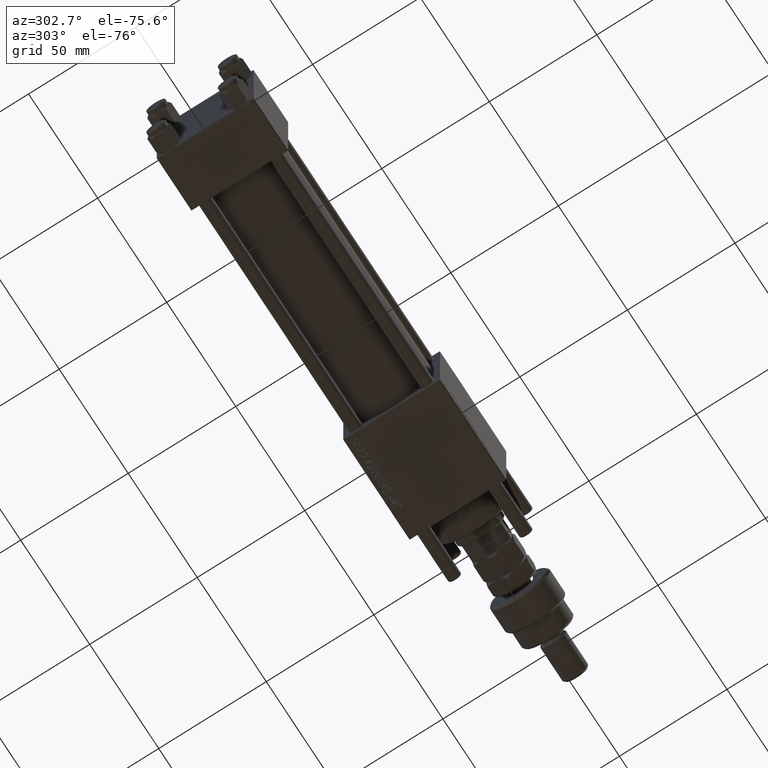
[diagram: clean part render]
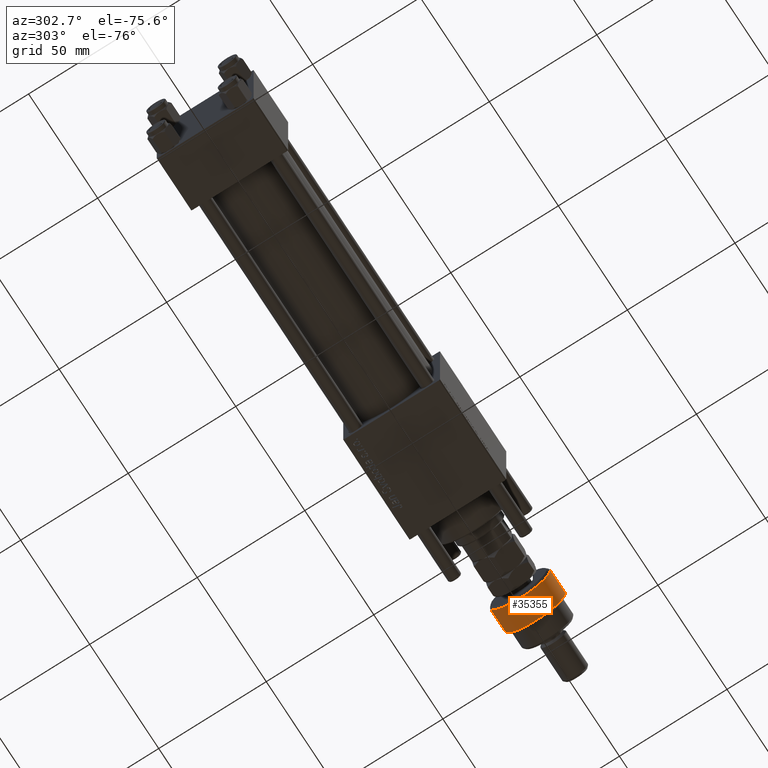
[diagram: same view with one face highlighted and labeled with its STEP entity id]
A machine part, auxiliary view. The second image highlights one B-rep face of the part: STEP entity #35355.
In plain terms, the highlighted cylindrical surface (edge-blend (fillet) strip) has radius 14 mm, axis along (-1, -0, 0).
Its self-contained STEP definition (entity closure, byte-faithful):
#341 = CARTESIAN_POINT ( 'NONE',  ( 0.000000000000000000, 0.000000000000000000, 13.00000000000000000 ) ) ;
#1012 = ORIENTED_EDGE ( 'NONE', *, *, #33241, .T. ) ;
#1550 = DIRECTION ( 'NONE',  ( 1.000000000000000000, 0.000000000000000000, 0.000000000000000000 ) ) ;
#3563 = CARTESIAN_POINT ( 'NONE',  ( 14.00000000000000000, 0.000000000000000000, 1.000000000000018208 ) ) ;
#7761 = DIRECTION ( 'NONE',  ( -1.000000000000000000, 0.000000000000000000, 0.000000000000000000 ) ) ;
#12013 = AXIS2_PLACEMENT_3D ( 'NONE', #341, #40020, #7761 ) ;
#12225 = DIRECTION ( 'NONE',  ( -0.000000000000000000, -0.000000000000000000, 1.000000000000000000 ) ) ;
#13374 = CIRCLE ( 'NONE', #49019, 14.00000000000000000 ) ;
#13424 = ORIENTED_EDGE ( 'NONE', *, *, #15268, .T. ) ;
#14225 = VERTEX_POINT ( 'NONE', #47698 ) ;
#14868 = ORIENTED_EDGE ( 'NONE', *, *, #54134, .T. ) ;
#14979 = AXIS2_PLACEMENT_3D ( 'NONE', #21288, #12225, #30630 ) ;
#15268 = EDGE_CURVE ( 'NONE', #32693, #53196, #13374, .T. ) ;
#16128 = CARTESIAN_POINT ( 'NONE',  ( -12.64911064067351809, -5.999999999999999112, 1.000000000000021760 ) ) ;
#16558 = EDGE_CURVE ( 'NONE', #38682, #14225, #28861, .T. ) ;
#17320 = CARTESIAN_POINT ( 'NONE',  ( -12.64911064067351809, 6.000000000000000000, 12.00000000000002842 ) ) ;
#20704 = DIRECTION ( 'NONE',  ( -0.000000000000000000, -0.000000000000000000, -1.000000000000000000 ) ) ;
#20840 = DIRECTION ( 'NONE',  ( -0.000000000000000000, -0.000000000000000000, 1.000000000000000000 ) ) ;
#21288 = CARTESIAN_POINT ( 'NONE',  ( 0.000000000000000000, 0.000000000000000000, 1.000000000000018208 ) ) ;
#22307 = VERTEX_POINT ( 'NONE', #41585 ) ;
#26622 = LINE ( 'NONE', #57670, #33125 ) ;
#27804 = CYLINDRICAL_SURFACE ( 'NONE', #12013, 14.00000000000000000 ) ;
#28861 = LINE ( 'NONE', #38496, #42312 ) ;
#28994 = CARTESIAN_POINT ( 'NONE',  ( 0.000000000000000000, 0.000000000000000000, 1.000000000000018208 ) ) ;
#30630 = DIRECTION ( 'NONE',  ( 1.000000000000000000, 0.000000000000000000, 0.000000000000000000 ) ) ;
#32204 = CIRCLE ( 'NONE', #48570, 14.00000000000000000 ) ;
#32537 = CARTESIAN_POINT ( 'NONE',  ( 0.000000000000000000, 0.000000000000000000, 12.00000000000002842 ) ) ;
#32693 = VERTEX_POINT ( 'NONE', #16128 ) ;
#33125 = VECTOR ( 'NONE', #45000, 1000.000000000000000 ) ;
#33241 = EDGE_CURVE ( 'NONE', #22307, #32693, #26622, .T. ) ;
#35355 = ADVANCED_FACE ( 'NONE', ( #50717 ), #27804, .T. ) ;
#38496 = CARTESIAN_POINT ( 'NONE',  ( -12.64911064067351809, 6.000000000000000000, 14.50000000000000000 ) ) ;
#38682 = VERTEX_POINT ( 'NONE', #17320 ) ;
#40020 = DIRECTION ( 'NONE',  ( -0.000000000000000000, -0.000000000000000000, -1.000000000000000000 ) ) ;
#41294 = DIRECTION ( 'NONE',  ( 1.000000000000000000, 0.000000000000000000, 0.000000000000000000 ) ) ;
#41585 = CARTESIAN_POINT ( 'NONE',  ( -12.64911064067351809, -5.999999999999999112, 12.00000000000002842 ) ) ;
#42312 = VECTOR ( 'NONE', #20704, 1000.000000000000000 ) ;
#43777 = EDGE_LOOP ( 'NONE', ( #53069, #46850, #1012, #13424, #14868 ) ) ;
#45000 = DIRECTION ( 'NONE',  ( -0.000000000000000000, -0.000000000000000000, -1.000000000000000000 ) ) ;
#45762 = CIRCLE ( 'NONE', #14979, 14.00000000000000000 ) ;
#46850 = ORIENTED_EDGE ( 'NONE', *, *, #52106, .T. ) ;
#47698 = CARTESIAN_POINT ( 'NONE',  ( -12.64911064067351809, 6.000000000000000000, 1.000000000000021760 ) ) ;
#48570 = AXIS2_PLACEMENT_3D ( 'NONE', #32537, #54562, #41294 ) ;
#49019 = AXIS2_PLACEMENT_3D ( 'NONE', #28994, #20840, #1550 ) ;
#50717 = FACE_OUTER_BOUND ( 'NONE', #43777, .T. ) ;
#52106 = EDGE_CURVE ( 'NONE', #38682, #22307, #32204, .T. ) ;
#53069 = ORIENTED_EDGE ( 'NONE', *, *, #16558, .F. ) ;
#53196 = VERTEX_POINT ( 'NONE', #3563 ) ;
#54134 = EDGE_CURVE ( 'NONE', #53196, #14225, #45762, .T. ) ;
#54562 = DIRECTION ( 'NONE',  ( 0.000000000000000000, 0.000000000000000000, -1.000000000000000000 ) ) ;
#57670 = CARTESIAN_POINT ( 'NONE',  ( -12.64911064067351809, -5.999999999999999112, 14.50000000000000000 ) ) ;